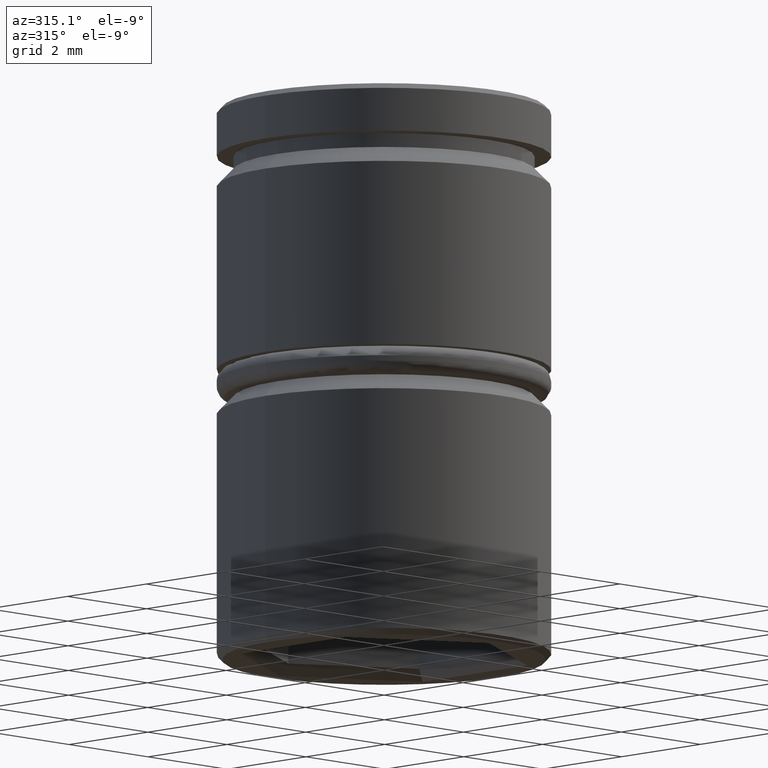
[diagram: clean part render]
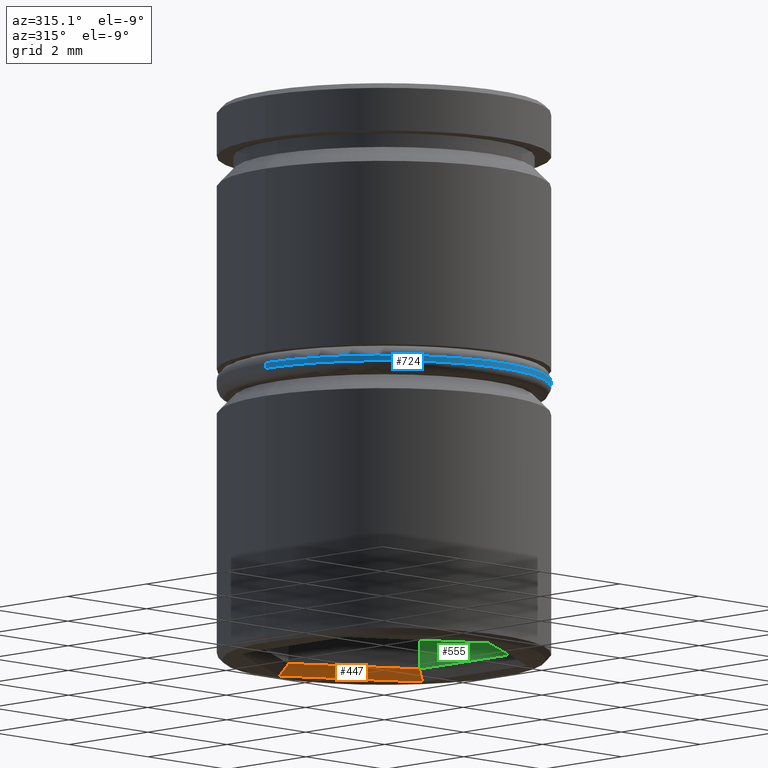
[diagram: same view with three faces highlighted in distinct colors, each labeled with its STEP entity id]
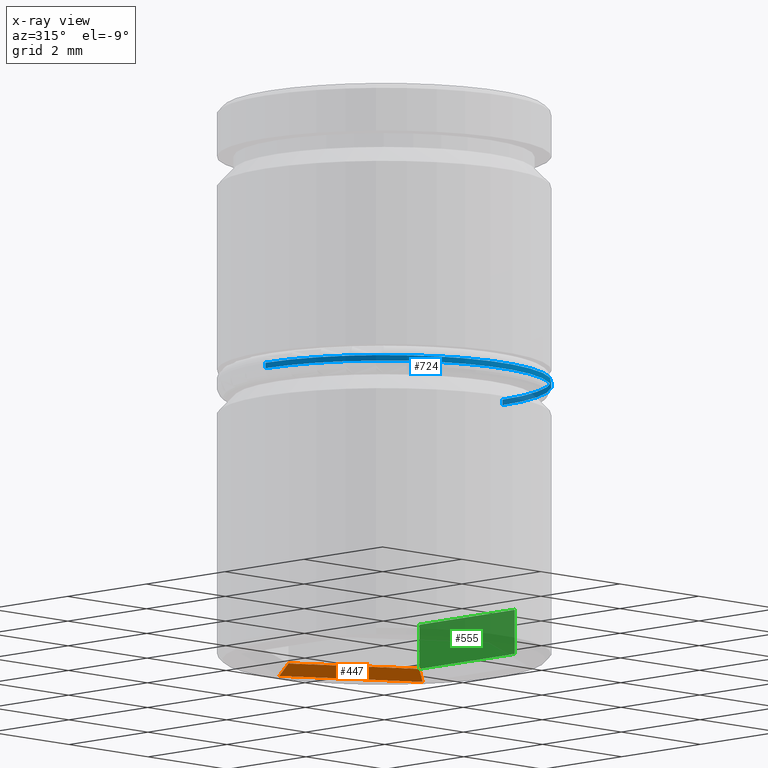
[diagram: x-ray of the same camera — body ghosted, the three highlighted faces saturated]
A machine part, auxiliary view with three faces highlighted in distinct colors.
The next image is the same camera in x-ray (body ghosted, the three faces saturated) — at least one of them is partly hidden behind the body in this view.
Their STEP definitions:

[orange] entity #447 — the highlighted planar face has unit normal (-0.3536, -0.6124, -0.7071).
#18 = EDGE_CURVE ( 'NONE', #354, #124, #53, .T. ) ;
#36 = LINE ( 'NONE', #1024, #248 ) ;
#44 = DIRECTION ( 'NONE',  ( 0.6546536707079746442, 0.3779644730092260874, -0.6546536707079803064 ) ) ;
#53 = LINE ( 'NONE', #503, #896 ) ;
#102 = CARTESIAN_POINT ( 'NONE',  ( 0.000000000000000000, 2.424871130596428781, -9.799999999999997158 ) ) ;
#124 = VERTEX_POINT ( 'NONE', #450 ) ;
#130 = VERTEX_POINT ( 'NONE', #346 ) ;
#248 = VECTOR ( 'NONE', #44, 1000.000000000000000 ) ;
#283 = DIRECTION ( 'NONE',  ( -0.8660254037844387076, 0.4999999999999998890, 0.000000000000000000 ) ) ;
#314 = LINE ( 'NONE', #407, #439 ) ;
#323 = AXIS2_PLACEMENT_3D ( 'NONE', #102, #728, #283 ) ;
#341 = ORIENTED_EDGE ( 'NONE', *, *, #572, .F. ) ;
#346 = CARTESIAN_POINT ( 'NONE',  ( 2.100000000000000977, 1.212435565298214390, -9.799999999999997158 ) ) ;
#354 = VERTEX_POINT ( 'NONE', #382 ) ;
#382 = CARTESIAN_POINT ( 'NONE',  ( 2.300000000000001599, 1.327905619136140025, -10.00000000000000000 ) ) ;
#407 = CARTESIAN_POINT ( 'NONE',  ( 2.100000000000000977, 1.212435565298214390, -9.799999999999997158 ) ) ;
#439 = VECTOR ( 'NONE', #580, 1000.000000000000000 ) ;
#447 = ADVANCED_FACE ( 'NONE', ( #813 ), #733, .T. ) ;
#450 = CARTESIAN_POINT ( 'NONE',  ( 1.441772048971224487E-16, 2.655811238272279606, -10.00000000000000000 ) ) ;
#503 = CARTESIAN_POINT ( 'NONE',  ( 0.1000000000000002276, 2.598076211353317344, -10.00000000000000000 ) ) ;
#560 = VERTEX_POINT ( 'NONE', #668 ) ;
#567 = DIRECTION ( 'NONE',  ( 3.950438052123424832E-16, 0.7559289460184517306, -0.6546536707079804174 ) ) ;
#572 = EDGE_CURVE ( 'NONE', #130, #354, #36, .T. ) ;
#580 = DIRECTION ( 'NONE',  ( 0.8660254037844387076, -0.4999999999999998890, 0.000000000000000000 ) ) ;
#593 = EDGE_CURVE ( 'NONE', #560, #130, #314, .T. ) ;
#648 = ORIENTED_EDGE ( 'NONE', *, *, #1060, .T. ) ;
#668 = CARTESIAN_POINT ( 'NONE',  ( 0.000000000000000000, 2.424871130596428781, -9.799999999999997158 ) ) ;
#728 = DIRECTION ( 'NONE',  ( -0.3535533905932751741, -0.6123724356957971349, -0.7071067811865445751 ) ) ;
#733 = PLANE ( 'NONE',  #323 ) ;
#755 = LINE ( 'NONE', #847, #1073 ) ;
#813 = FACE_OUTER_BOUND ( 'NONE', #1052, .T. ) ;
#847 = CARTESIAN_POINT ( 'NONE',  ( -4.336808689942017736E-16, 1.732050807568882522, -9.199999999999995737 ) ) ;
#864 = DIRECTION ( 'NONE',  ( -0.8660254037844387076, 0.4999999999999998890, 0.000000000000000000 ) ) ;
#896 = VECTOR ( 'NONE', #864, 1000.000000000000000 ) ;
#920 = ORIENTED_EDGE ( 'NONE', *, *, #593, .F. ) ;
#1024 = CARTESIAN_POINT ( 'NONE',  ( 1.500000000000005773, 0.8660254037844412611, -9.199999999999995737 ) ) ;
#1052 = EDGE_LOOP ( 'NONE', ( #648, #1137, #341, #920 ) ) ;
#1060 = EDGE_CURVE ( 'NONE', #560, #124, #755, .T. ) ;
#1073 = VECTOR ( 'NONE', #567, 999.9999999999998863 ) ;
#1137 = ORIENTED_EDGE ( 'NONE', *, *, #18, .F. ) ;

[blue] entity #724 — the highlighted cylindrical surface (partial cylindrical patch) has radius 3 mm, axis along (-0, -0, 1).
#129 = CARTESIAN_POINT ( 'NONE',  ( 0.000000000000000000, 0.000000000000000000, -4.949999999999997513 ) ) ;
#139 = EDGE_CURVE ( 'NONE', #502, #675, #1174, .T. ) ;
#151 = DIRECTION ( 'NONE',  ( 1.000000000000000000, 0.000000000000000000, 0.000000000000000000 ) ) ;
#155 = EDGE_LOOP ( 'NONE', ( #396, #459, #1021, #722 ) ) ;
#160 = CYLINDRICAL_SURFACE ( 'NONE', #176, 3.000000000000000444 ) ;
#176 = AXIS2_PLACEMENT_3D ( 'NONE', #352, #695, #513 ) ;
#209 = AXIS2_PLACEMENT_3D ( 'NONE', #129, #575, #856 ) ;
#352 = CARTESIAN_POINT ( 'NONE',  ( 0.000000000000000000, 0.000000000000000000, -13.73528137423857132 ) ) ;
#396 = ORIENTED_EDGE ( 'NONE', *, *, #139, .F. ) ;
#397 = VECTOR ( 'NONE', #914, 1000.000000000000000 ) ;
#401 = VECTOR ( 'NONE', #774, 1000.000000000000000 ) ;
#459 = ORIENTED_EDGE ( 'NONE', *, *, #653, .T. ) ;
#483 = EDGE_CURVE ( 'NONE', #528, #675, #760, .T. ) ;
#502 = VERTEX_POINT ( 'NONE', #841 ) ;
#513 = DIRECTION ( 'NONE',  ( 1.000000000000000000, 0.000000000000000000, 0.000000000000000000 ) ) ;
#528 = VERTEX_POINT ( 'NONE', #1020 ) ;
#557 = VERTEX_POINT ( 'NONE', #662 ) ;
#575 = DIRECTION ( 'NONE',  ( 0.000000000000000000, 0.000000000000000000, -1.000000000000000000 ) ) ;
#618 = CIRCLE ( 'NONE', #1046, 3.000000000000000444 ) ;
#653 = EDGE_CURVE ( 'NONE', #502, #557, #618, .T. ) ;
#662 = CARTESIAN_POINT ( 'NONE',  ( 3.000000000000000444, 0.000000000000000000, -5.049999999999998934 ) ) ;
#675 = VERTEX_POINT ( 'NONE', #1050 ) ;
#695 = DIRECTION ( 'NONE',  ( -0.000000000000000000, -0.000000000000000000, 1.000000000000000000 ) ) ;
#722 = ORIENTED_EDGE ( 'NONE', *, *, #483, .T. ) ;
#724 = ADVANCED_FACE ( 'NONE', ( #782 ), #160, .T. ) ;
#760 = CIRCLE ( 'NONE', #209, 3.000000000000000444 ) ;
#773 = EDGE_CURVE ( 'NONE', #557, #528, #961, .T. ) ;
#774 = DIRECTION ( 'NONE',  ( -0.000000000000000000, -0.000000000000000000, 1.000000000000000000 ) ) ;
#782 = FACE_OUTER_BOUND ( 'NONE', #155, .T. ) ;
#801 = CARTESIAN_POINT ( 'NONE',  ( 0.000000000000000000, 0.000000000000000000, -5.049999999999998934 ) ) ;
#841 = CARTESIAN_POINT ( 'NONE',  ( -3.000000000000000444, 3.673940397442060361E-16, -5.049999999999998934 ) ) ;
#856 = DIRECTION ( 'NONE',  ( -1.000000000000000000, 0.000000000000000000, 0.000000000000000000 ) ) ;
#875 = CARTESIAN_POINT ( 'NONE',  ( 3.000000000000000444, 0.000000000000000000, -13.73528137423857132 ) ) ;
#914 = DIRECTION ( 'NONE',  ( -0.000000000000000000, -0.000000000000000000, 1.000000000000000000 ) ) ;
#961 = LINE ( 'NONE', #875, #401 ) ;
#983 = CARTESIAN_POINT ( 'NONE',  ( -3.000000000000000444, 3.673940397442060361E-16, -13.73528137423857132 ) ) ;
#1020 = CARTESIAN_POINT ( 'NONE',  ( 3.000000000000000444, 0.000000000000000000, -4.949999999999997513 ) ) ;
#1021 = ORIENTED_EDGE ( 'NONE', *, *, #773, .T. ) ;
#1046 = AXIS2_PLACEMENT_3D ( 'NONE', #801, #1064, #151 ) ;
#1050 = CARTESIAN_POINT ( 'NONE',  ( -3.000000000000000444, 3.673940397442060361E-16, -4.949999999999997513 ) ) ;
#1064 = DIRECTION ( 'NONE',  ( 0.000000000000000000, 0.000000000000000000, 1.000000000000000000 ) ) ;
#1174 = LINE ( 'NONE', #983, #397 ) ;

[green] entity #555 — the highlighted planar face has unit normal (1, 0, -0).
#47 = CARTESIAN_POINT ( 'NONE',  ( 2.100000000000000977, -1.212435565298214835, -9.000000000000001776 ) ) ;
#52 = VERTEX_POINT ( 'NONE', #47 ) ;
#67 = LINE ( 'NONE', #438, #441 ) ;
#69 = EDGE_CURVE ( 'NONE', #902, #52, #1149, .T. ) ;
#74 = ORIENTED_EDGE ( 'NONE', *, *, #1178, .F. ) ;
#91 = LINE ( 'NONE', #727, #469 ) ;
#99 = EDGE_LOOP ( 'NONE', ( #957, #1056, #74, #1092 ) ) ;
#130 = VERTEX_POINT ( 'NONE', #346 ) ;
#141 = CARTESIAN_POINT ( 'NONE',  ( 2.100000000000000977, 1.212435565298214390, -9.000000000000001776 ) ) ;
#199 = DIRECTION ( 'NONE',  ( 1.000000000000000000, 0.000000000000000000, -0.000000000000000000 ) ) ;
#243 = EDGE_CURVE ( 'NONE', #902, #130, #91, .T. ) ;
#245 = LINE ( 'NONE', #614, #1144 ) ;
#346 = CARTESIAN_POINT ( 'NONE',  ( 2.100000000000000977, 1.212435565298214390, -9.799999999999997158 ) ) ;
#390 = FACE_OUTER_BOUND ( 'NONE', #99, .T. ) ;
#409 = CARTESIAN_POINT ( 'NONE',  ( 2.100000000000000977, 1.212435565298214390, -9.000000000000001776 ) ) ;
#438 = CARTESIAN_POINT ( 'NONE',  ( 2.100000000000000977, -1.212435565298214835, -9.799999999999997158 ) ) ;
#441 = VECTOR ( 'NONE', #615, 1000.000000000000000 ) ;
#469 = VECTOR ( 'NONE', #1088, 1000.000000000000000 ) ;
#515 = VECTOR ( 'NONE', #1131, 1000.000000000000000 ) ;
#555 = ADVANCED_FACE ( 'NONE', ( #390 ), #1109, .F. ) ;
#563 = CARTESIAN_POINT ( 'NONE',  ( 2.100000000000000977, -1.212435565298214835, -9.799999999999997158 ) ) ;
#607 = VERTEX_POINT ( 'NONE', #563 ) ;
#614 = CARTESIAN_POINT ( 'NONE',  ( 2.100000000000000977, -1.212435565298214835, -9.000000000000001776 ) ) ;
#615 = DIRECTION ( 'NONE',  ( 0.000000000000000000, -1.000000000000000000, 0.000000000000000000 ) ) ;
#645 = EDGE_CURVE ( 'NONE', #130, #607, #67, .T. ) ;
#681 = CARTESIAN_POINT ( 'NONE',  ( 2.100000000000000977, 1.212435565298214390, -9.000000000000001776 ) ) ;
#727 = CARTESIAN_POINT ( 'NONE',  ( 2.100000000000000977, 1.212435565298214390, -9.000000000000001776 ) ) ;
#771 = DIRECTION ( 'NONE',  ( -0.000000000000000000, 0.000000000000000000, -1.000000000000000000 ) ) ;
#877 = AXIS2_PLACEMENT_3D ( 'NONE', #681, #199, #771 ) ;
#902 = VERTEX_POINT ( 'NONE', #141 ) ;
#957 = ORIENTED_EDGE ( 'NONE', *, *, #243, .T. ) ;
#970 = DIRECTION ( 'NONE',  ( -0.000000000000000000, -0.000000000000000000, -1.000000000000000000 ) ) ;
#1056 = ORIENTED_EDGE ( 'NONE', *, *, #645, .T. ) ;
#1088 = DIRECTION ( 'NONE',  ( -0.000000000000000000, -0.000000000000000000, -1.000000000000000000 ) ) ;
#1092 = ORIENTED_EDGE ( 'NONE', *, *, #69, .F. ) ;
#1109 = PLANE ( 'NONE',  #877 ) ;
#1131 = DIRECTION ( 'NONE',  ( 0.000000000000000000, -1.000000000000000000, 0.000000000000000000 ) ) ;
#1144 = VECTOR ( 'NONE', #970, 1000.000000000000000 ) ;
#1149 = LINE ( 'NONE', #409, #515 ) ;
#1178 = EDGE_CURVE ( 'NONE', #52, #607, #245, .T. ) ;